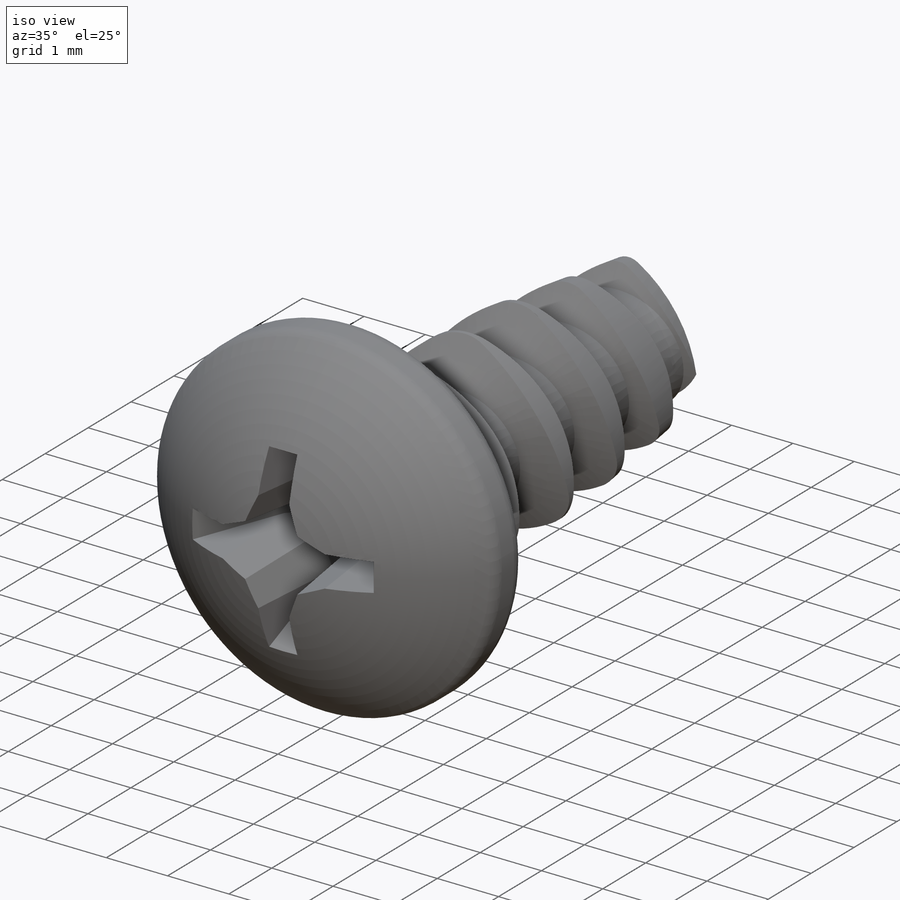
[diagram: iso view]
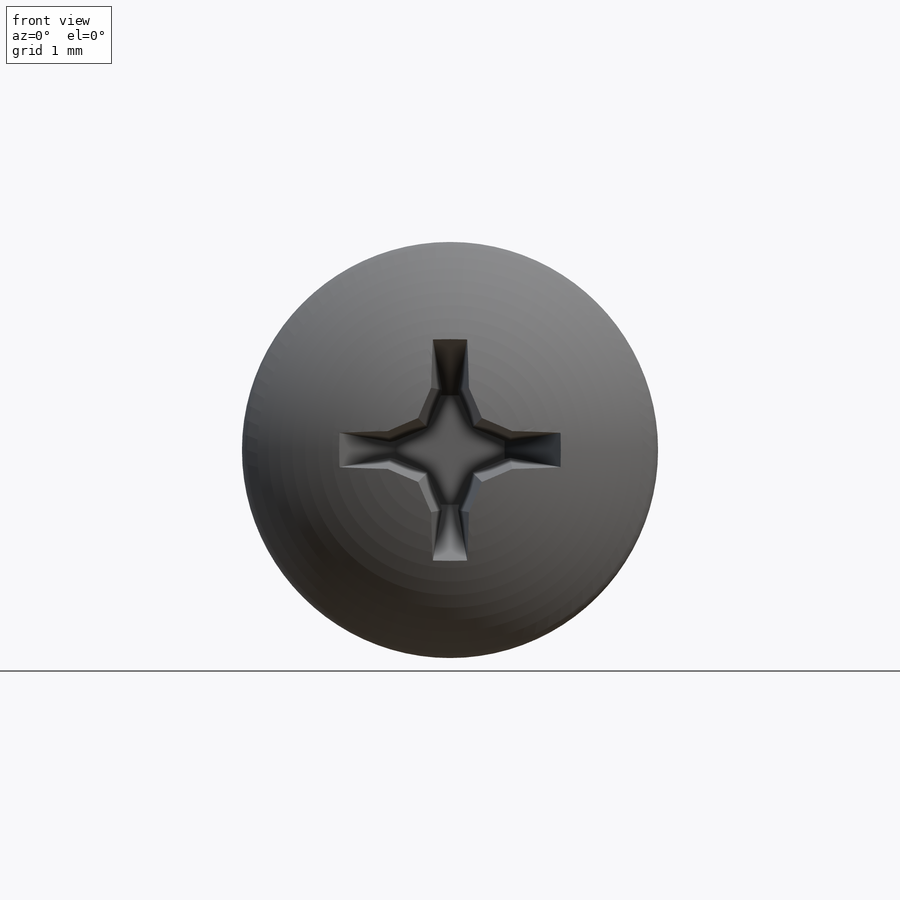
[diagram: front view]
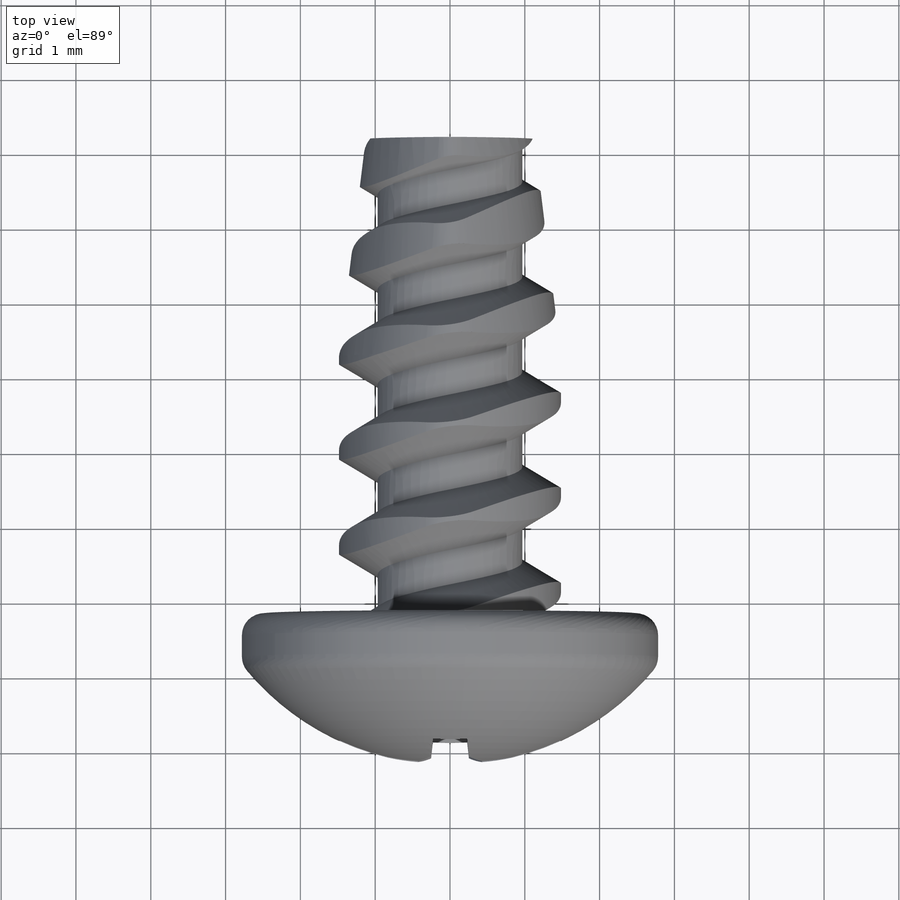
[diagram: top view]
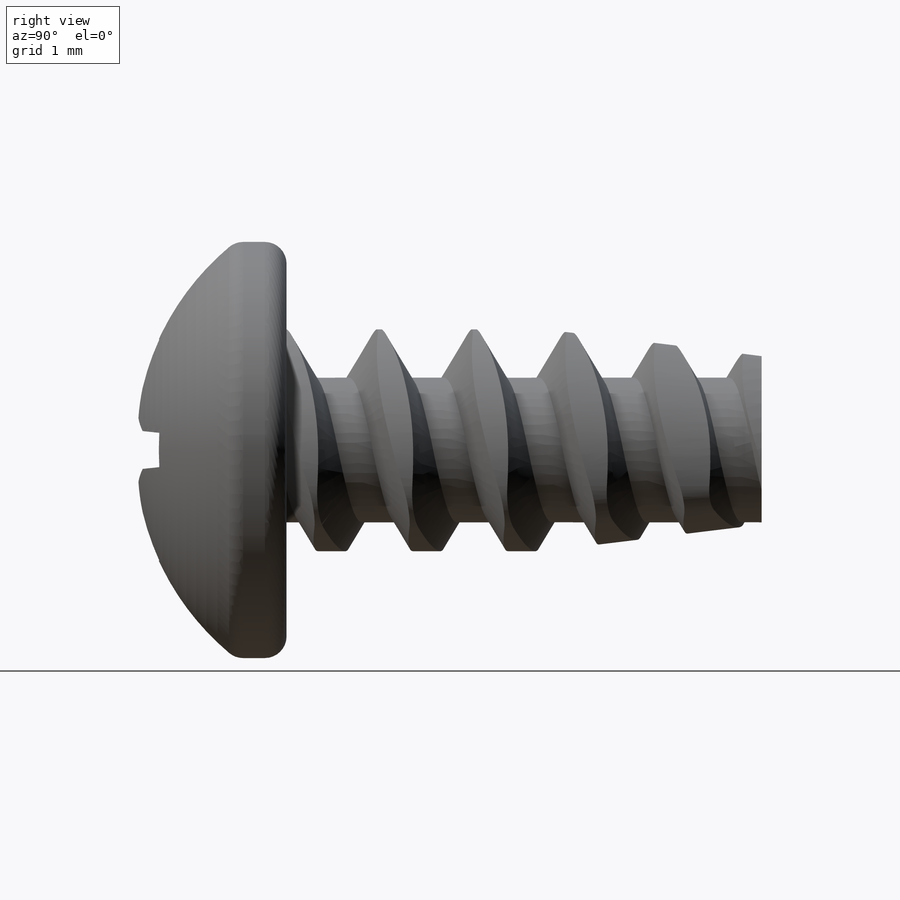
[diagram: right view]
SOLIDWORKS PART (.sldprt)
format: sldprt  version: not decoded by parser v0  size: 723,968 bytes
history: native  units: mm
features: sketch x8, cut_extrude x3, revolve x2, plane x2, pattern_circular x2, material x1, helix x1, sweep x1 (+13 scaffold rows collapsed)
feature tree (33):
  scaffold x13  (default folders/planes/origin — collapsed)
  material  "Material <not specified>"
  sketch  "Sketch2"  dims[c1.Screw OD 'C'=3.2258mm c1.Length=6.35mm c1.D1=~0.391451mm c2.D1=10.0deg c2.Thread Pitch=~1.93548mm c2.D2=3.2258mm]
  revolve  "Revolve1"  Angle=360deg
  sketch  "Sketch9"  dims[D1=0.0mm]
  helix  "Helix/Spiral1"  Pitch=9.525mm
  sketch  "Sketch3"  dims[c1.D1=1.5875mm c1.D2=~0.049609mm c1.D3=~0.725714mm c1.D4=~1.836971mm c1.D8=1.5875mm c2.D4=~0.845288mm c3.D4=60.0deg c3.D1=1.2065mm c3.D2=~0.64516mm]
  sweep  "Cut-Sweep2"
  sketch  "Sketch1"  dims[c1.D1=5.3848mm c1.D2=5.3086mm c1.D5=0.254mm c2.D1=~0.64516mm c2.D2=~0.848452mm c3.D2=120.0deg c3.D3=~1.950935mm c4.D3=120.0deg c4.Triangular 'D'=4.3942mm c5.D3=~1.295115mm c6.D3=120.0deg c6.D5=~0.00254mm]
  cut_extrude  "Cut-Extrude2"  [1 undecoded]
  plane  "Plane1"
  sketch  "Sketch6"
  cut_extrude  "Cut-Extrude4"  [1 undecoded]
  sketch  "Sketch7"  dims[c1.D2=2.3368mm c1.Head Height=2.032mm c1.Head Dia=5.5626mm c1.D1=~0.290286mm c1.D3=6.35mm c2.D2=~0.290286mm]
  revolve  "Revolve2"  Angle=360deg
  plane  "Plane2"
  sketch  "Sketch8"  dims[c1.D1=~0.528447mm c1.D2=~3.33756mm c1.D3=~1.434531mm c2.D3=22.5deg]
  cut_extrude  "Cut-Extrude5"  Depth=1.6256mm
  pattern_circular  "CirPattern1"  Count=4 Angle=360deg
  pattern_circular  "Draft2"  Angle=6deg  [1 undecoded]
  sketch  "Sketch10"
decode coverage: 12 of 17 modeling features carry decoded parameters
note: ~ marks probable driven/reference dimensions
note: 3 parameter values undecoded
note: suppression state not decoded; provenance and decode notes live in map.json
